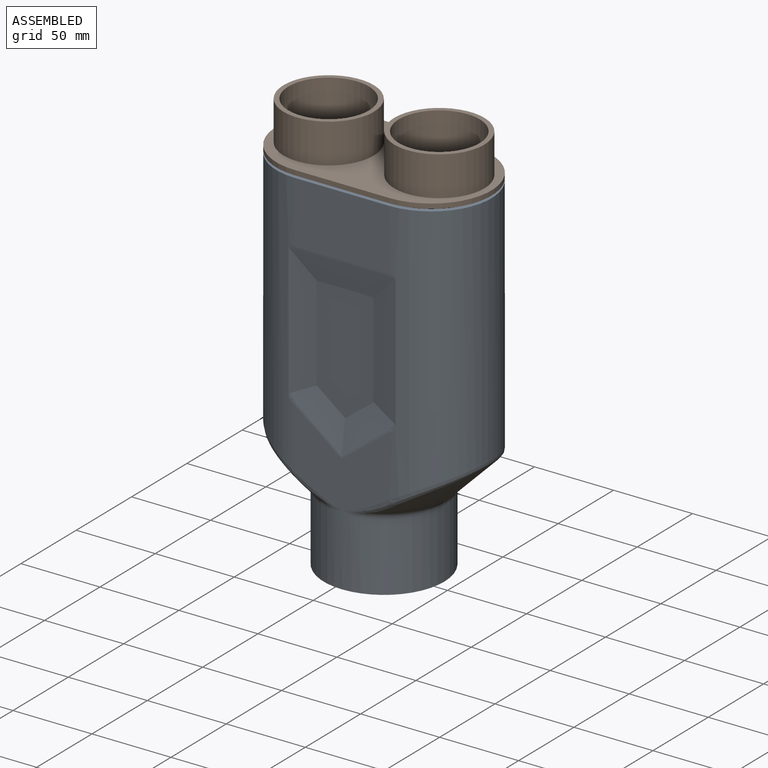
[diagram: assembled view]
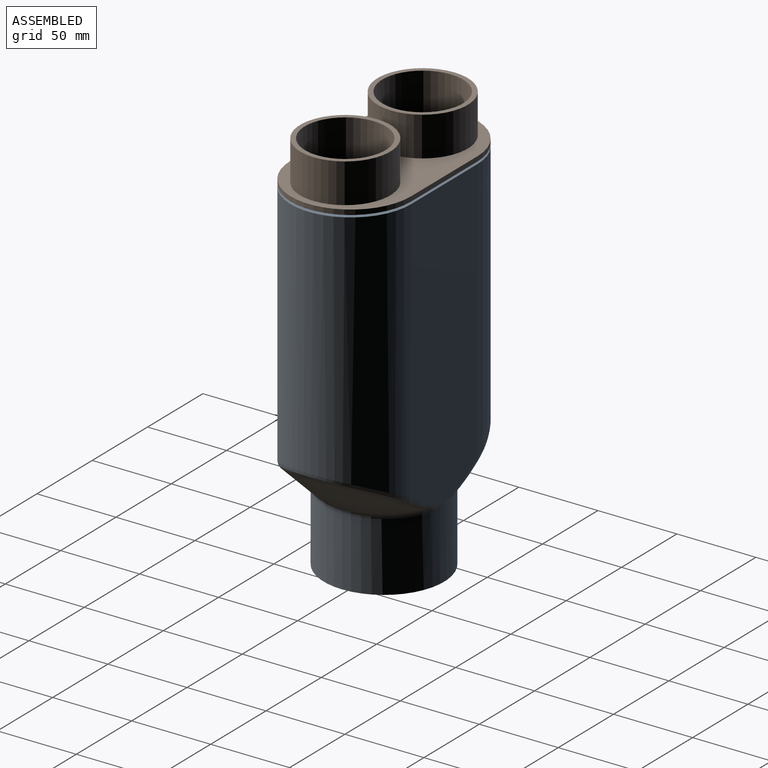
[diagram: assembled view, second angle]
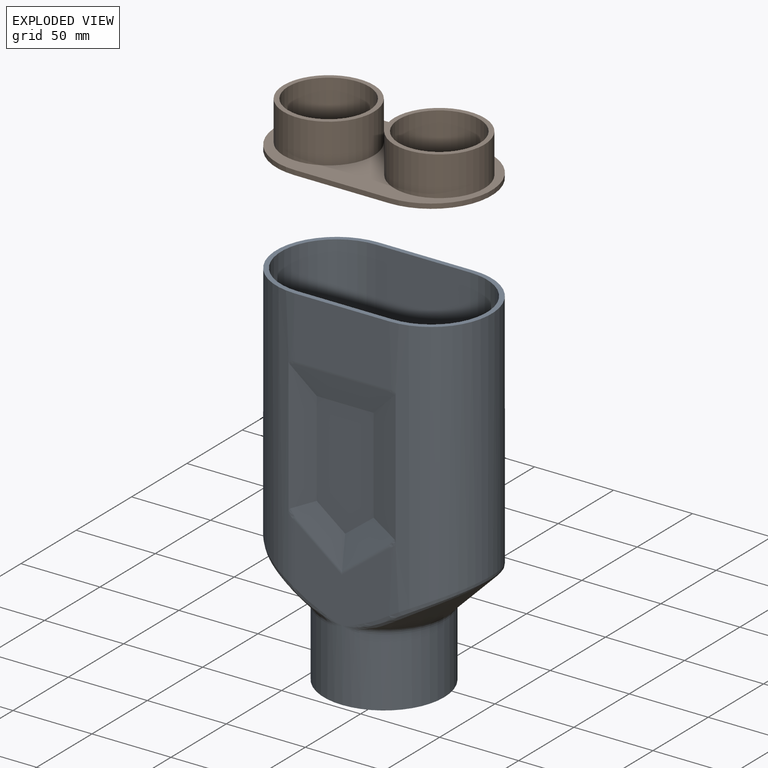
[diagram: exploded view]
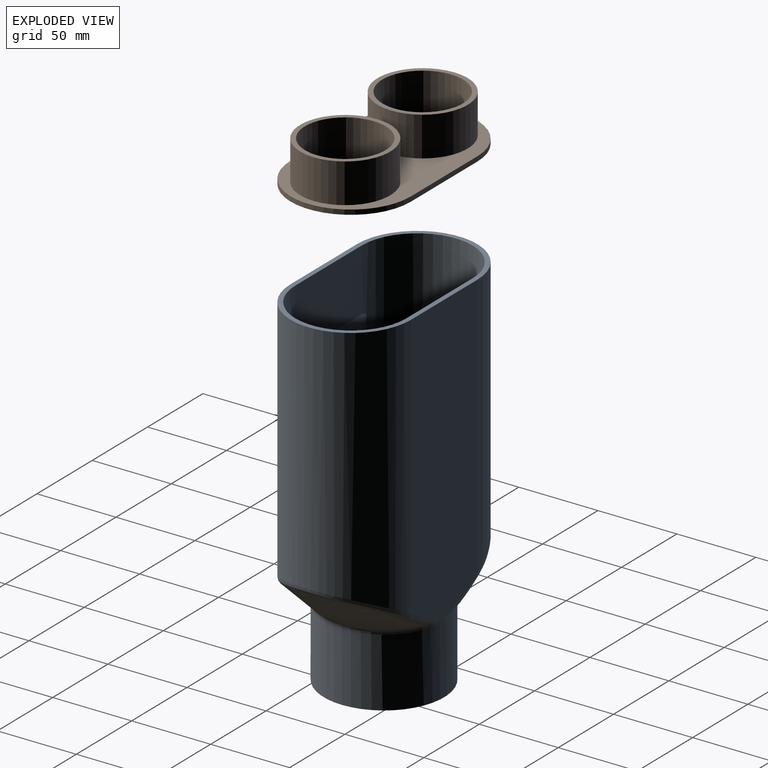
[diagram: exploded view, second angle]
ASSEMBLY  parts=2 mates=2
PART A: 77 faces, bbox 137.6x123.8x228.7 mm
  f0: plane 60.02x51.93mm, normal (0,-1,0), area 2074.2mm2, adj f5,f6,f20,f21,f22,f23,f24,f25
  f1: plane 60x38.77mm, normal (0,-1,0), area 2326.1mm2, adj f5,f6,f7,f75
  f2: cylinder r=38.1mm len=76.2mm, axis (0,0,-1), area 10439.5mm2, adj f3,f10,f11,f12,f13,f14,f15
  f3: plane 76.2x76.2mm, normal (0,0,-1), area 689.9mm2, adj f2,f38
  f4: plane 183.23x61.34mm, normal (0,1,0), area 10571mm2, adj f5,f6,f7,f16,f17,f18,f27,f28
  f5: cylinder r=38.1mm len=168.26mm, axis (0,0,-1), area 18337.7mm2, adj f0,f1,f4,f7,f26,f33,f73,f76
  f6: cylinder r=38.1mm len=168.26mm, axis (0,0,-1), area 18337.8mm2, adj f0,f1,f4,f7,f19,f32,f70,f74
  f7: plane 136.2x76.2mm, normal (0,0,1), area 1049.9mm2, adj f1,f4,f5,f6,f37,f39,f40,f41
  f8: cone r=67.6mm half-angle=45deg, axis (0,0,1), area 2650.5mm2, adj f14,f25,f26,f27
  f9: cone r=67.6mm half-angle=45deg, axis (0,0,1), area 2650.7mm2, adj f11,f18,f19,f20
  f10: bspline ~12.86x4.18mm, area 8.9mm2, adj f2,f11,f22
  f11: torus R=43.1mm, axis (0,0,-1), area 386.3mm2, adj f2,f9,f10,f12,f17,f21
  f12: bspline ~12.89x4.19mm, area 8.9mm2, adj f2,f11,f16
  f13: bspline ~12.86x4.18mm, area 8.9mm2, adj f2,f14,f29
  f14: torus R=43.1mm, axis (0,0,-1), area 386.3mm2, adj f2,f8,f13,f15,f24,f28
  f15: bspline ~12.89x4.19mm, area 8.9mm2, adj f2,f14,f23
  f16: bspline ~10.44x3.03mm, area 9.3mm2, adj f4,f12,f17
  f17: bspline ~12.72x6.58mm, area 19mm2, adj f4,f11,f16,f18
  f18: bspline ~23.53x15.3mm, area 87.2mm2, adj f4,f9,f17,f19
  f19: bspline ~76.29x43.32mm, area 534.2mm2, adj f6,f9,f18,f20
  f20: bspline ~23.04x15.15mm, area 87.2mm2, adj f0,f9,f19,f21
  f21: bspline ~15.24x7.34mm, area 19mm2, adj f0,f11,f20,f22
  f22: bspline ~13.27x4.24mm, area 9.2mm2, adj f0,f10,f21
  f23: bspline ~10.44x3.03mm, area 9.2mm2, adj f0,f15,f24
  f24: bspline ~13.86x6.88mm, area 19mm2, adj f0,f14,f23,f25
  f25: bspline ~30.92x17.33mm, area 87.2mm2, adj f0,f8,f24,f26
  f26: bspline ~76.29x43.32mm, area 534.2mm2, adj f5,f8,f25,f27
  f27: bspline ~23.53x15.3mm, area 87.2mm2, adj f4,f8,f26,f28
  f28: bspline ~12.72x6.58mm, area 19mm2, adj f4,f14,f27,f29
  f29: bspline ~10.44x3.03mm, area 9.2mm2, adj f4,f13,f28
  f30: plane 73.95x35.99mm, normal (0,-1,0), area 2410.3mm2, adj f31,f32,f33,f34,f35
  f31: plane 66.29x16.15mm, normal (0,-0.98,-0.17), area 852.1mm2, adj f30,f32,f33,f74,f75,f76
  f32: plane 87.09x15.89mm, normal (-0.17,-0.98,0), area 1159.3mm2, adj f6,f30,f31,f34,f70,f74
  f33: plane 87.09x15.89mm, normal (0.17,-0.98,0), area 1159.3mm2, adj f5,f30,f31,f35,f73,f76
  f34: plane 34.42x32.71mm, normal (-0.11,-0.98,0.14), area 537.7mm2, adj f30,f32,f35,f70,f71
  f35: plane 34.42x32.71mm, normal (0.11,-0.98,0.14), area 537.7mm2, adj f30,f33,f34,f72,f73
  f36: plane 60.55x53.24mm, normal (0,1,0), area 2120.7mm2, adj f40,f41,f54,f55,f56,f57,f58,f59
  f37: plane 60x39.38mm, normal (0,1,0), area 2362.9mm2, adj f7,f40,f41,f65
  f38: cylinder r=35.1mm len=70.2mm, axis (0,0,-1), area 9617.5mm2, adj f3,f44,f45,f46,f47,f48,f49
  f39: plane 182.43x60.54mm, normal (0,-1,0), area 10571mm2, adj f7,f40,f41,f50,f51,f52,f61,f62
  f40: cylinder r=35.1mm len=168.26mm, axis (0,0,-1), area 16866.6mm2, adj f7,f36,f37,f39,f60,f65,f67,f69
  f41: cylinder r=35.1mm len=168.26mm, axis (0,0,-1), area 16866.7mm2, adj f7,f36,f37,f39,f53,f65,f66,f68
  f42: cone r=65.48mm half-angle=45deg, axis (0,0,1), area 2538.2mm2, adj f48,f59,f60,f61
  f43: cone r=65.48mm half-angle=45deg, axis (0,0,1), area 2538.4mm2, adj f45,f52,f53,f54
  f44: bspline ~12.08x6.62mm, area 12.9mm2, adj f38,f45,f56
  f45: torus R=43.1mm, axis (0,0,-1), area 574.6mm2, adj f38,f43,f44,f46,f51,f55
  f46: bspline ~12.1x6.63mm, area 12.9mm2, adj f38,f45,f50
  f47: bspline ~12.08x6.62mm, area 12.9mm2, adj f38,f48,f63
  f48: torus R=43.1mm, axis (0,0,-1), area 574.6mm2, adj f38,f42,f47,f49,f58,f62
  f49: bspline ~12.1x6.63mm, area 12.9mm2, adj f38,f48,f57
  f50: bspline ~9.74x2.81mm, area 3.6mm2, adj f39,f46,f51
  f51: bspline ~11.92x5.63mm, area 7.7mm2, adj f39,f45,f50,f52
  f52: bspline ~22.02x13.18mm, area 34.3mm2, adj f39,f43,f51,f53
  f53: bspline ~70.24x39.9mm, area 202.8mm2, adj f41,f43,f52,f54
  f54: bspline ~21.53x13.03mm, area 34.3mm2, adj f36,f43,f53,f55
  f55: bspline ~14.49x6.57mm, area 7.7mm2, adj f36,f45,f54,f56
  f56: bspline ~10.37x3.09mm, area 3.6mm2, adj f36,f44,f55
  f57: bspline ~9.74x2.81mm, area 3.6mm2, adj f36,f49,f58
  f58: bspline ~13.05x6.11mm, area 7.7mm2, adj f36,f48,f57,f59
  f59: bspline ~29.41x15.21mm, area 34.3mm2, adj f36,f42,f58,f60
  f60: bspline ~70.24x39.9mm, area 202.8mm2, adj f40,f42,f59,f61
  f61: bspline ~22.02x13.18mm, area 34.3mm2, adj f39,f42,f60,f62
  f62: bspline ~11.92x5.63mm, area 7.7mm2, adj f39,f48,f61,f63
  f63: bspline ~11.23x3.51mm, area 3.6mm2, adj f39,f47,f62
  f64: plane 74.55x36.52mm, normal (0,1,0), area 2463.4mm2, adj f65,f66,f67,f68,f69
  f65: plane 68.61x17.66mm, normal (0,0.98,0.17), area 919.6mm2, adj f37,f40,f41,f64,f66,f67
  f66: plane 83.8x15.73mm, normal (0.17,0.98,0), area 1151.2mm2, adj f41,f64,f65,f68
  f67: plane 83.8x15.73mm, normal (-0.17,0.98,0), area 1151.2mm2, adj f40,f64,f65,f69
  f68: plane 36.52x34.79mm, normal (0.11,0.98,-0.14), area 582.1mm2, adj f36,f41,f64,f66,f69
  f69: plane 36.52x34.79mm, normal (-0.11,0.98,-0.14), area 582.1mm2, adj f36,f40,f64,f67,f68
  f70: bspline ~6.18x6.13mm, area 13mm2, adj f6,f32,f34,f71
  f71: cylinder r=10mm len=31.07mm, axis (-0.79,0,-0.61), area 65.1mm2, adj f0,f34,f70,f72
  f72: cylinder r=10mm len=31.07mm, axis (-0.79,0,0.61), area 65.1mm2, adj f0,f35,f71,f73
  f73: bspline ~6.18x6.13mm, area 13mm2, adj f5,f33,f35,f72
  f74: bspline ~6.63x3.55mm, area 7.1mm2, adj f6,f31,f32,f75
  f75: cylinder r=10mm len=60mm, axis (-1,0,0), area 104.7mm2, adj f1,f31,f74,f76
  f76: bspline ~9.12x3.55mm, area 7.1mm2, adj f5,f31,f33,f75
PART B: 12 faces, bbox 136.2x76.2x28 mm
  f0: plane 60x3mm, normal (0,1,0), area 180mm2, adj f1,f3,f4,f5
  f1: cylinder r=38.1mm len=76.2mm, axis (0,0,-1), area 359.1mm2, adj f0,f2,f4,f5
  f2: plane 60x3mm, normal (0,-1,0), area 180mm2, adj f1,f3,f4,f5
  f3: cylinder r=38.1mm len=76.2mm, axis (0,0,-1), area 359.1mm2, adj f0,f2,f4,f5
  f4: plane 136.2x76.2mm, normal (0,0,1), area 4002mm2, adj f0,f1,f2,f3,f6,f8
  f5: plane 136.2x76.2mm, normal (0,0,-1), area 5022.7mm2, adj f0,f1,f2,f3,f10,f11
  f6: cylinder r=28.57mm len=57.15mm, axis (0,0,-1), area 4488.6mm2, adj f4,f7
  f7: plane 57.15x57.15mm, normal (0,0,1), area 510.4mm2, adj f6,f11
  f8: cylinder r=28.57mm len=57.15mm, axis (0,0,-1), area 4488.6mm2, adj f4,f9
  f9: plane 57.15x57.15mm, normal (0,0,1), area 510.4mm2, adj f8,f10
  f10: cylinder r=25.57mm len=51.15mm, axis (0,0,-1), area 4499.4mm2, adj f5,f9
  f11: cylinder r=25.57mm len=51.15mm, axis (0,0,-1), area 4499.4mm2, adj f5,f7
PLACE A t=(-58.71,33.62,-39.21)mm fixed
PLACE B t=(-58.71,33.62,189.69)mm
MATE planar A.f2 <-> B.f3  axis (0,0,1) through (-58.71,33.62,188.19)mm
MATE cylindrical A.f6 <-> B.f3  axis (0,0,-1) through (-28.71,33.62,103.56)mm
